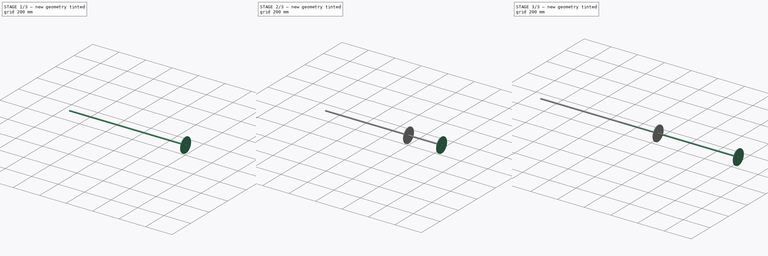
[diagram: build sequence overview — one tinted view per stage of 3, left to right]
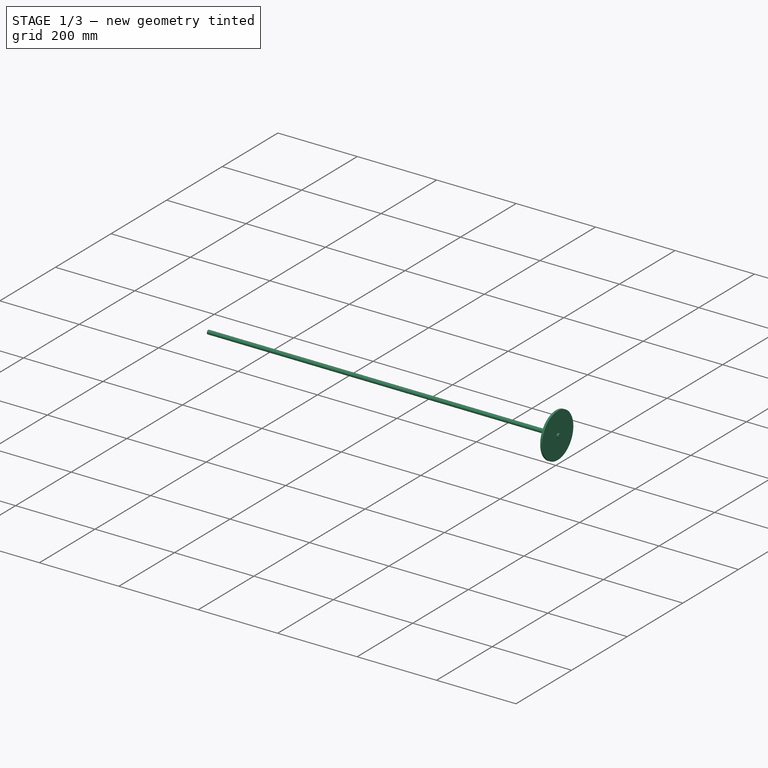
[diagram: stage 1 of 3 — iso view after this stage's code; geometry added in this stage tinted green]
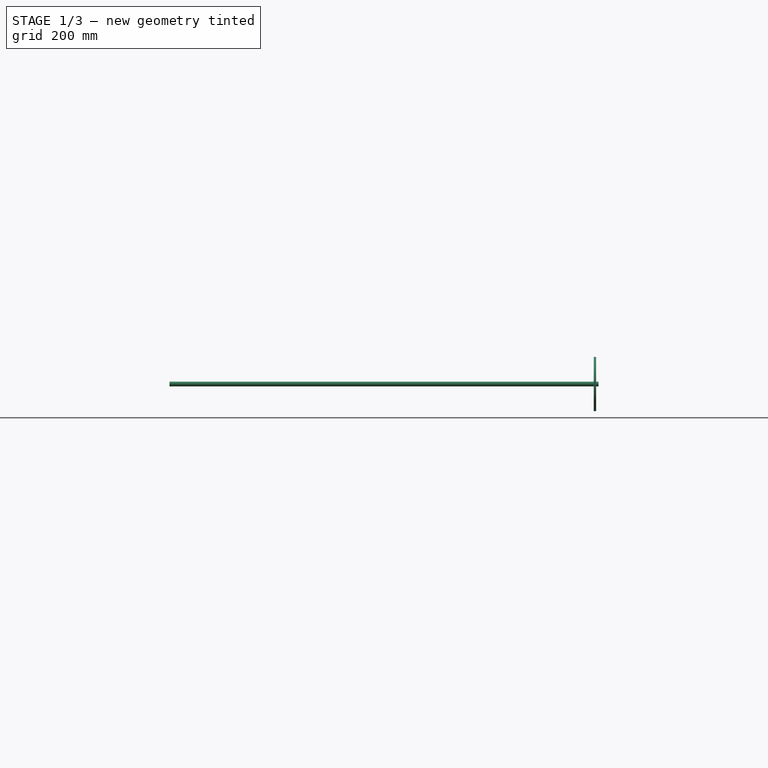
[diagram: stage 1 of 3 — front view after this stage's code; geometry added in this stage tinted green]
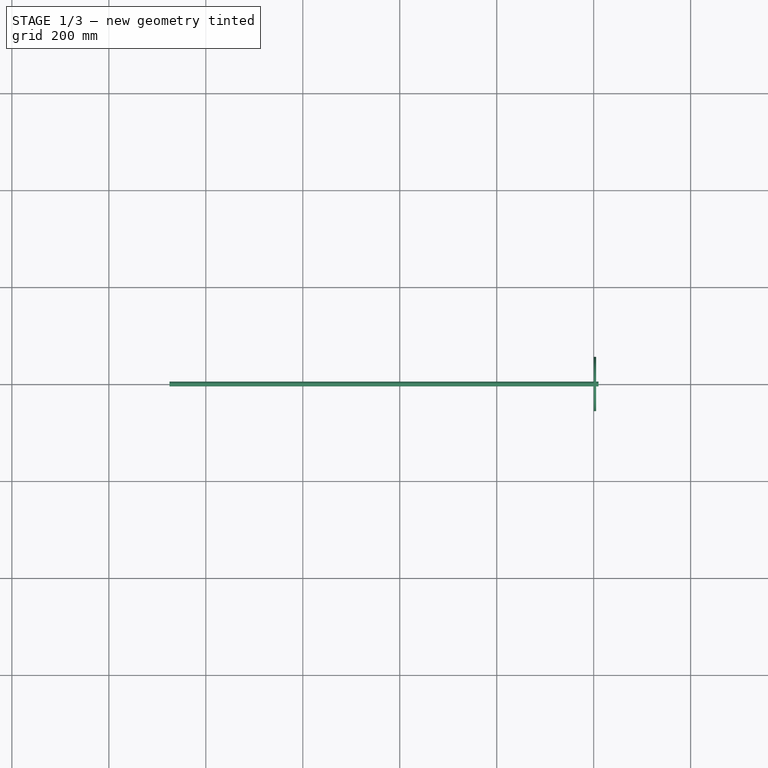
[diagram: stage 1 of 3 — top view after this stage's code; geometry added in this stage tinted green]
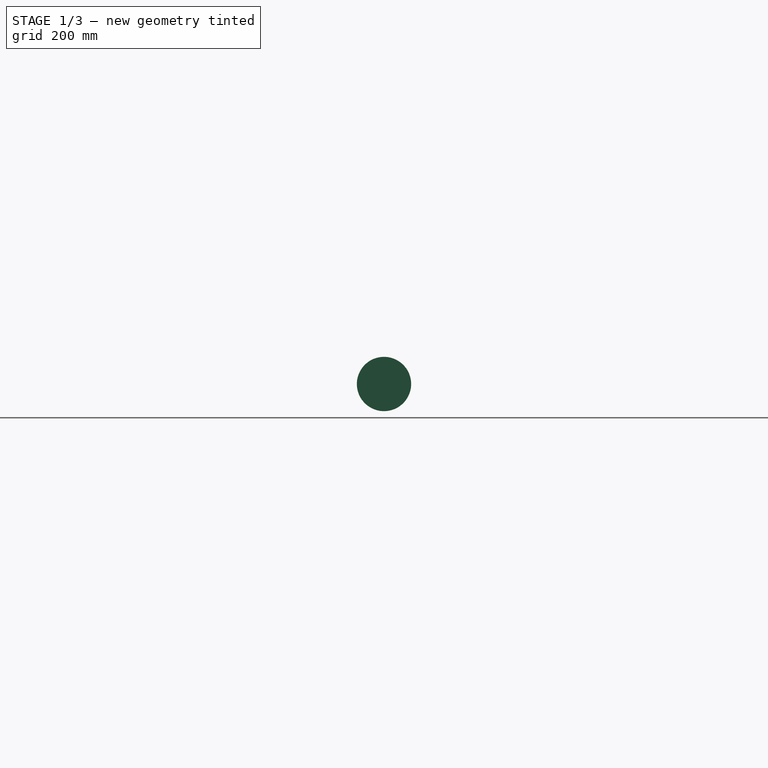
[diagram: stage 1 of 3 — right view after this stage's code; geometry added in this stage tinted green]
FCSTD DOCUMENT  (FreeCAD 0.16R6704 (Git))
Label: Actuator with Rod
License: All rights reserved
LicenseURL: http://en.wikipedia.org/wiki/All_rights_reserved
objects: Part::Feature×12, Sketcher::SketchObject×3, App::MeasureDistance×3, PartDesign::Pad×2, Part::Cylinder×2, Part::MultiFuse×2
note: 23 computed .brp shape members not serialized (recipe doc carries the construction recipe); baked Part::Feature solids carry a one-line shape summary decoded from their .brp

FEATURE [App::MeasureDistance] Distance  label="Distance: 111.907 mm"
  Distance = 111.907
  P1 = (858.45,-55.4026,-1.0306)
  P2 = (858.45,56.5,0)
FEATURE [Sketcher::SketchObject] Sketch002
  Placement = pos=(0,0,0) rot=(0.57735,0.57735,0.57735;2.0944rad)
  sketch-geometry (1):
    g0: Circle CenterX=0 CenterY=0 CenterZ=0 NormalX=0 NormalY=0 NormalZ=1 Radius=5
  constraints (2):
    c: Coincident(g0,g-1)
    c: Radius(g0) = 5
FEATURE [PartDesign::Pad] Pad001  label="Rod001"
  Length = 10
  Length2 = 875
  Placement = pos=(0,0,0) rot=(0.57735,0.57735,0.57735;2.0944rad)
  Sketch = -> Sketch002
  Type = 4
FEATURE [Part::Cylinder] Cylinder001  label="Flange_for_Rod001"
  Angle = 360
  Height = 5
  Placement = pos=(0,0,0) rot=(0,1,0;1.5708rad)
  Radius = 56
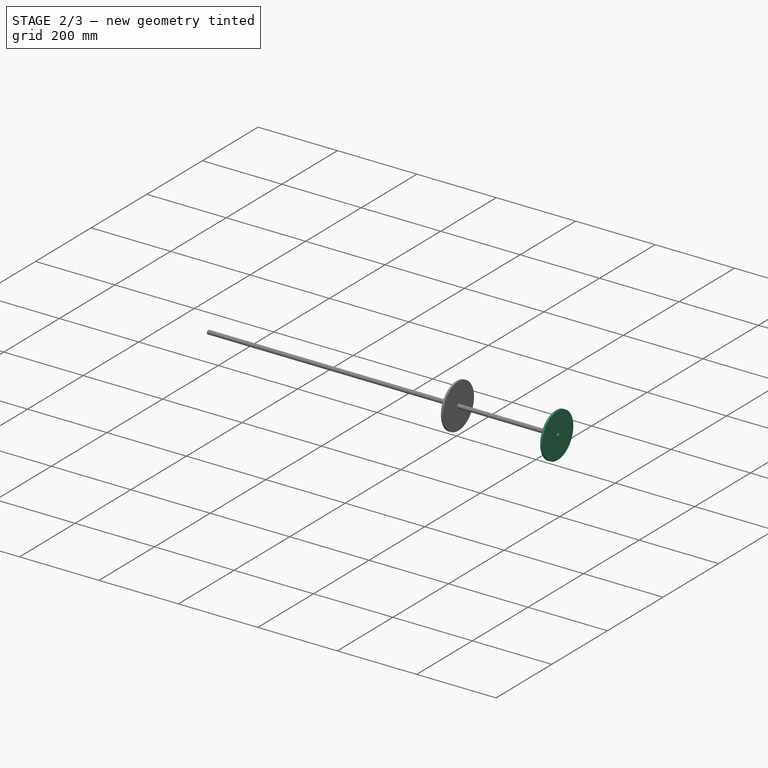
[diagram: stage 2 of 3 — iso view after this stage's code; geometry added in this stage tinted green]
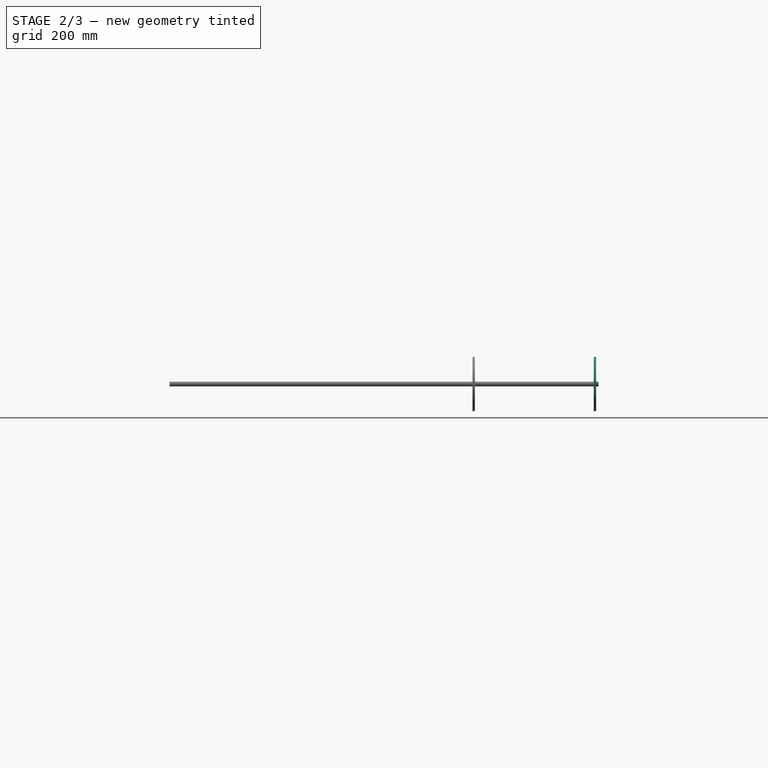
[diagram: stage 2 of 3 — front view after this stage's code; geometry added in this stage tinted green]
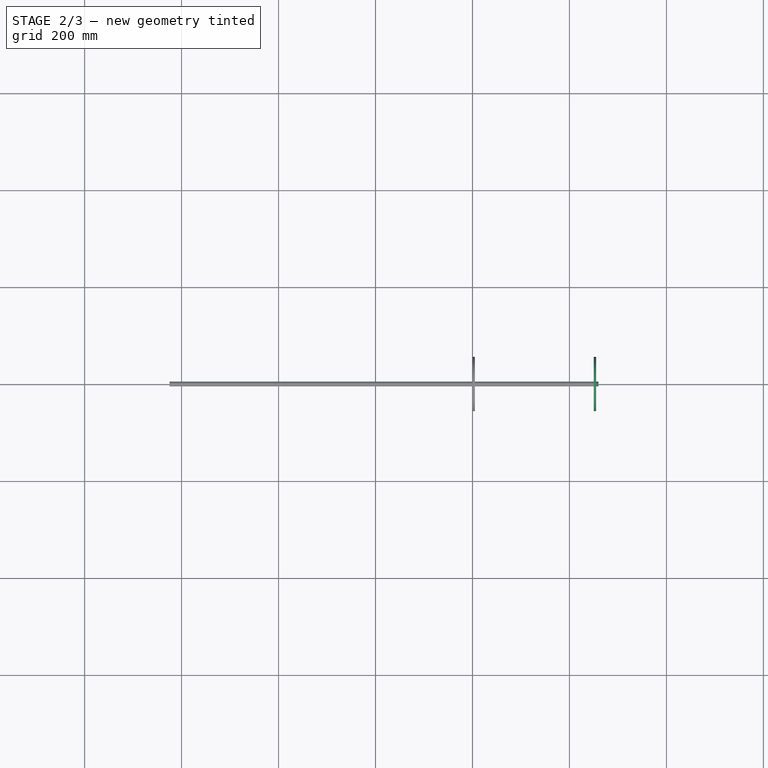
[diagram: stage 2 of 3 — top view after this stage's code; geometry added in this stage tinted green]
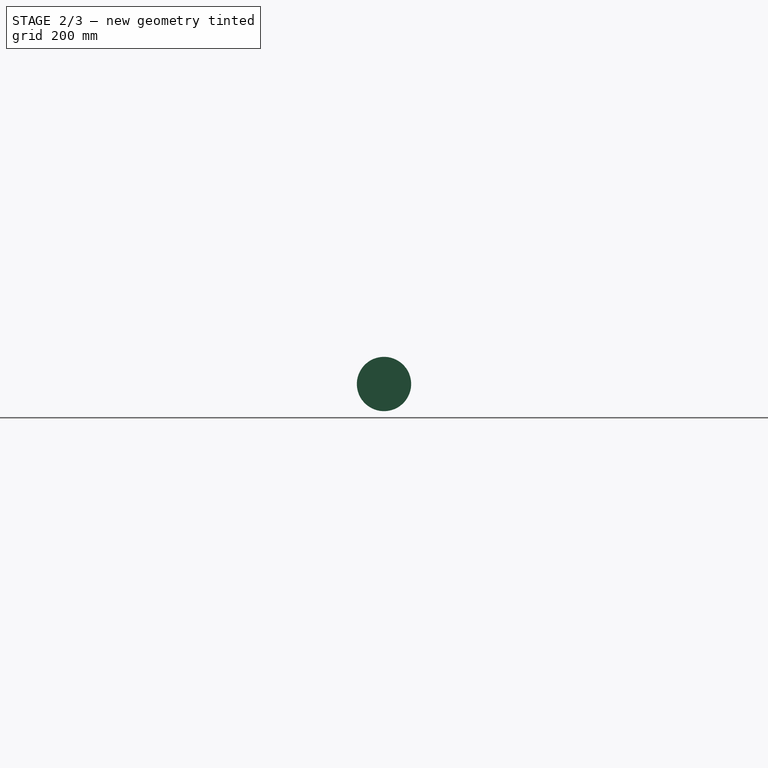
[diagram: stage 2 of 3 — right view after this stage's code; geometry added in this stage tinted green]
FEATURE [Part::Cylinder] Cylinder  label="Flange_for_Rod"
  Angle = 360
  Height = 5
  Placement = pos=(0,0,0) rot=(0,1,0;1.5708rad)
  Radius = 56
FEATURE [Part::MultiFuse] Fusion001  label="Rod+Flange001"
  Placement = pos=(250,0,0) rot=(0,0,1;0rad)
  Shapes = -> [Pad001,Cylinder001]
FEATURE [App::MeasureDistance] Distance002  label="Distance: 600.416 mm"
  Distance = 600.416
  P1 = (97.5,-72.2443,16.1803)
  P2 = (697.5,-69.5632,38.3742)
FEATURE [App::MeasureDistance] Distance003  label="Distance: 599.016 mm"
  Distance = 599.016
  P1 = (250,48.4974,28)
  P2 = (849,51.3552,24.7314)
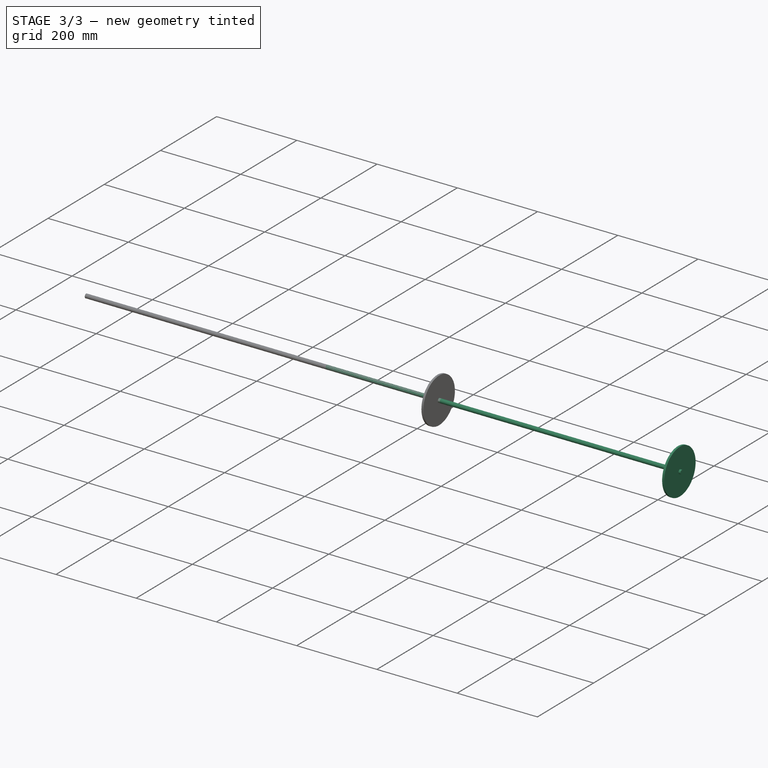
[diagram: stage 3 of 3 — iso view after this stage's code; geometry added in this stage tinted green]
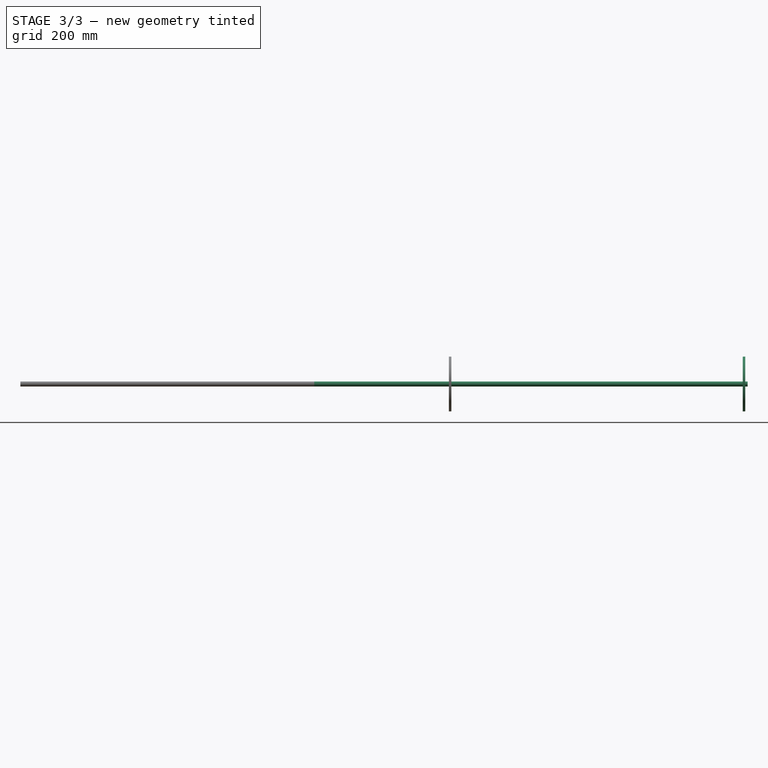
[diagram: stage 3 of 3 — front view after this stage's code; geometry added in this stage tinted green]
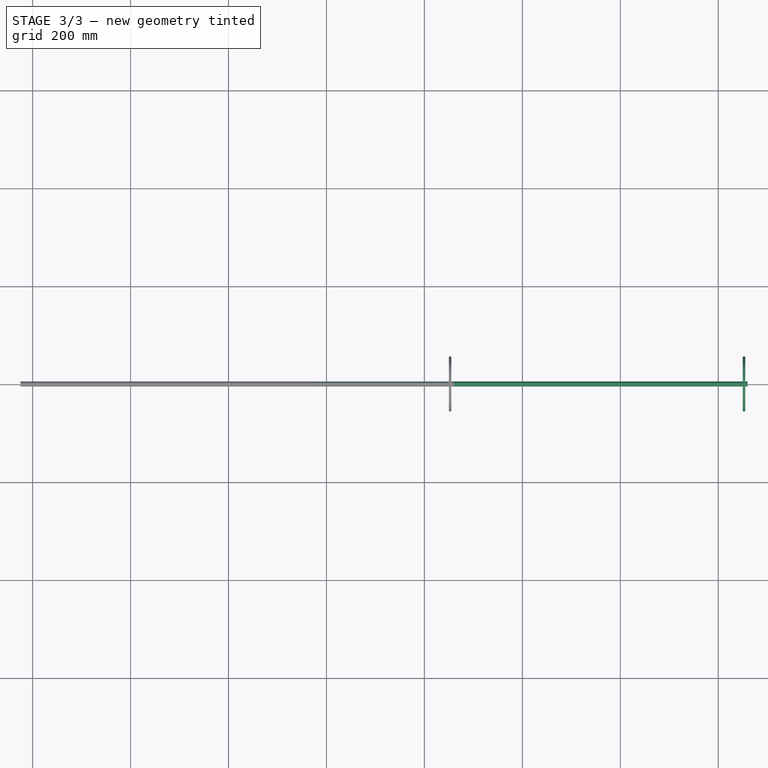
[diagram: stage 3 of 3 — top view after this stage's code; geometry added in this stage tinted green]
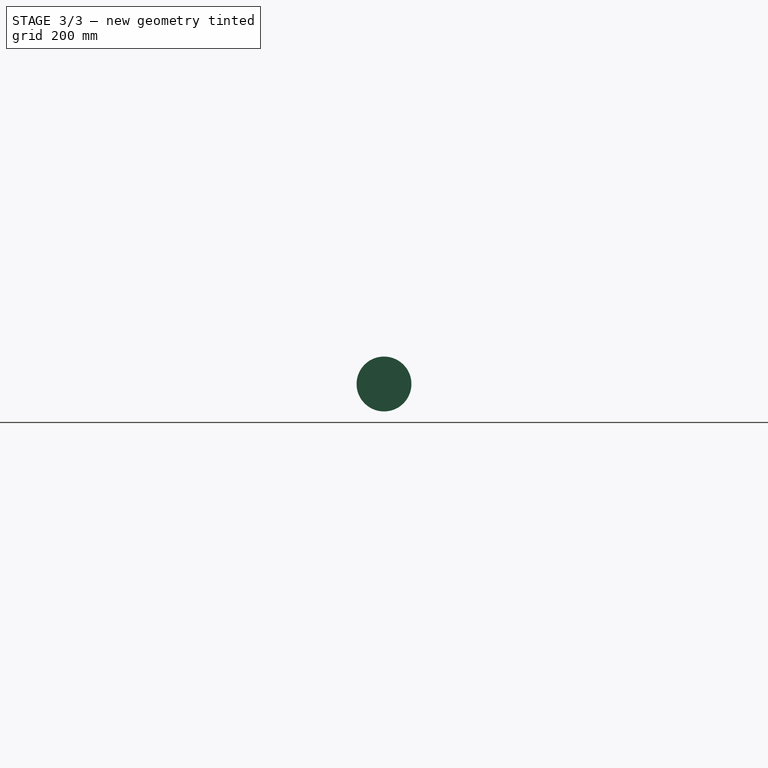
[diagram: stage 3 of 3 — right view after this stage's code; geometry added in this stage tinted green]
FEATURE [Part::Feature] Part__Feature  label="_HLSML-Plate-1_(60064SS)"
  shape: bbox 910.5 x 144 x 125 mm, 204 faces (baked)
FEATURE [Part::Feature] Part__Feature001  label="_HLSML-Flange_(64)"
  Placement = pos=(-1.55,0,0) rot=(0,0,1;0rad)
  shape: bbox 17.4 x 124.5 x 124.5 mm, 77 faces (baked)
FEATURE [Part::Feature] Part__Feature002  label="_HLSML-Bellows_(064SS600)"
  Placement = pos=(71.75,0,0) rot=(0,0,1;0rad)
  shape: bbox 844.2 x 90 x 90 mm, 122 faces (baked)
FEATURE [Part::Feature] Part__Feature003  label="_HLSML-Flange_(64)001"
  Placement = pos=(858.45,0,0) rot=(0,1,0;3.14159rad)
  shape: bbox 17.4 x 124.5 x 124.5 mm, 77 faces (baked)
FEATURE [Part::Feature] Part__Feature004  label="_HLSML-Plate-2_(60064SS)"
  Placement = pos=(856.9,0,0) rot=(0,0,1;0rad)
  shape: bbox 29.5 x 140.1 x 123 mm, 158 faces (baked)
FEATURE [Part::Feature] Part__Feature005  label="_HLSML-Cylinder_(60064SS)"
  Placement = pos=(827.4,-84,0) rot=(0,0,1;0rad)
  shape: bbox 168 x 78.2 x 82 mm, 24 faces (baked)
FEATURE [Part::Feature] Part__Feature006  label="_HLSML-Housing_(64SS600)"
  Placement = pos=(890.5,-147,0) rot=(0,0,1;0rad)
  shape: bbox 114 x 192.7 x 131 mm, 203 faces (baked)
FEATURE [Part::Feature] Part__Feature007  label="_HLSML-Motor_(60064SS)"
  Placement = pos=(822.5,-206.7,0) rot=(0,0,1;3.14159rad)
  shape: bbox 84.5 x 57.2 x 70.4 mm, 84 faces (baked)
FEATURE [Part::Feature] Part__Feature008  label="_HLSML-SEN4 ()"
  Placement = pos=(890.5,-97,45.5) rot=(0,0,1;3.14159rad)
  shape: bbox 46.55 x 59.2 x 16.17 mm, 872 faces (baked)
FEATURE [Part::Feature] Part__Feature009  label="_HLSML-SEN6"
  Placement = pos=(880.5,-66.8284,34.8284) rot=(-1,0,0;0.785398rad)
  shape: bbox 28.1 x 32.91 x 32.66 mm, 133 faces (baked)
FEATURE [Part::Feature] Part__Feature010  label="_HLSML-Base Housing_(60064SS)"
  Placement = pos=(0,-147,0) rot=(0,0,1;0rad)
  shape: bbox 888.5 x 71.14 x 161.4 mm, 182 faces (baked)
FEATURE [Part::Feature] Part__Feature011  label="_HLSML-SEN5 ()"
  Placement = pos=(34.5,-102.5,54.5) rot=(0,0,1;0rad)
  shape: bbox 62.7 x 36.5 x 23 mm, 158 faces (baked)
FEATURE [Sketcher::SketchObject] Sketch
  Placement = pos=(0,0,0) rot=(-1,0,0;4.71239rad)
FEATURE [Sketcher::SketchObject] Sketch001
  Placement = pos=(0,0,0) rot=(0.57735,0.57735,0.57735;2.0944rad)
  sketch-geometry (1):
    g0: Circle CenterX=0 CenterY=0 CenterZ=0 NormalX=0 NormalY=0 NormalZ=1 Radius=5
  constraints (2):
    c: Coincident(g0,g-1)
    c: Radius(g0) = 5
FEATURE [PartDesign::Pad] Pad  label="Rod"
  Length = 10
  Length2 = 875
  Placement = pos=(0,0,0) rot=(0.57735,0.57735,0.57735;2.0944rad)
  Sketch = -> Sketch001
  Type = 4
FEATURE [Part::MultiFuse] Fusion  label="Rod+Flange"
  Placement = pos=(850,0,0) rot=(0,0,1;0rad)
  Shapes = -> [Pad,Cylinder]
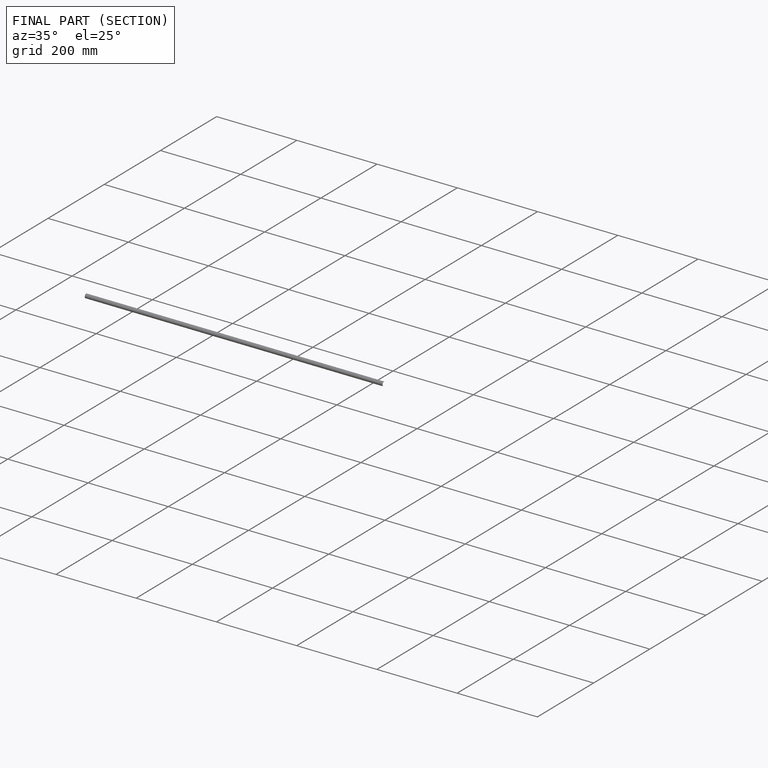
[diagram: finished part — half-section view (interior)]
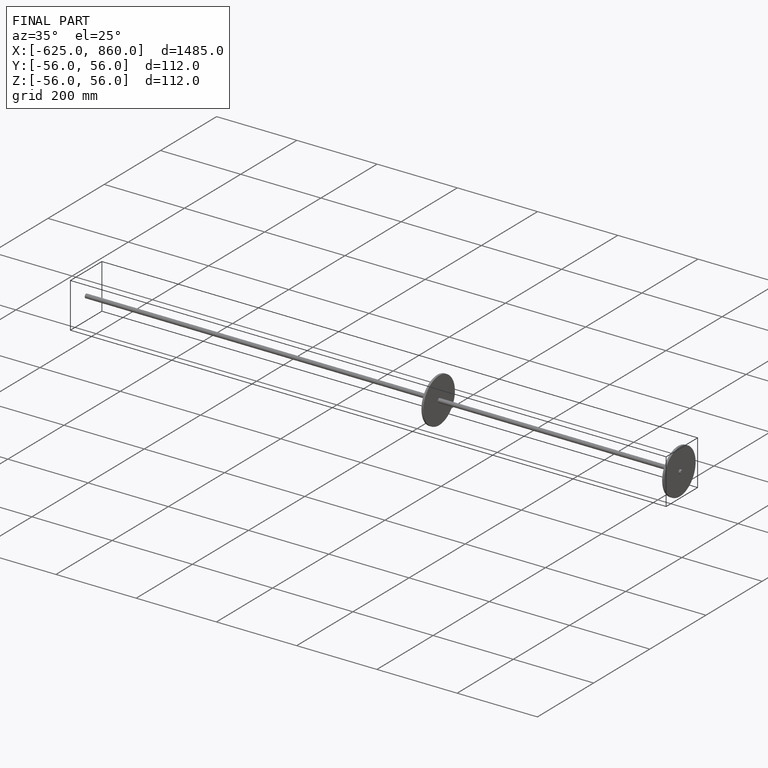
[diagram: finished part — iso view with bounding-box wireframe]
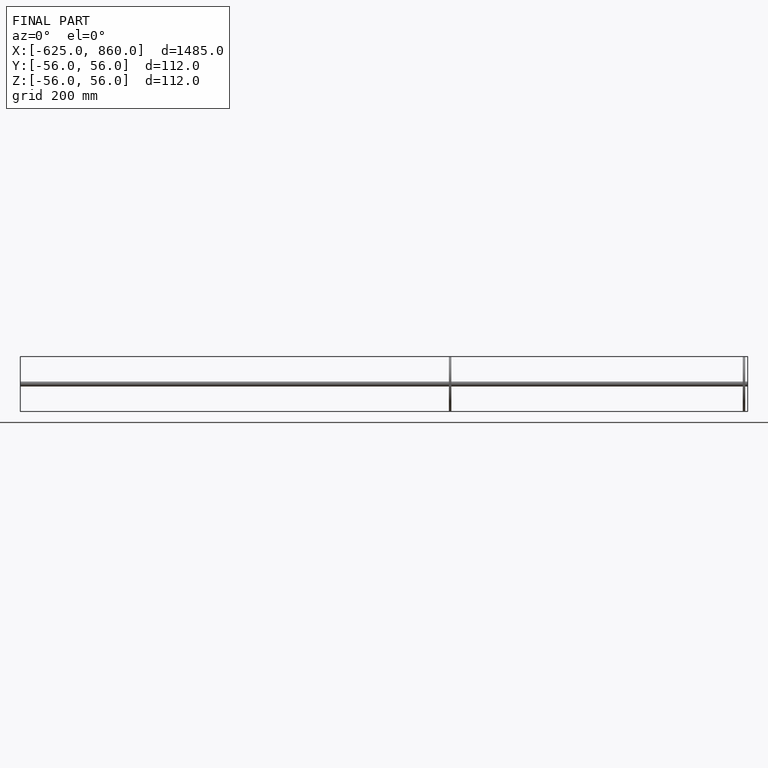
[diagram: finished part — front view with bounding-box wireframe]
